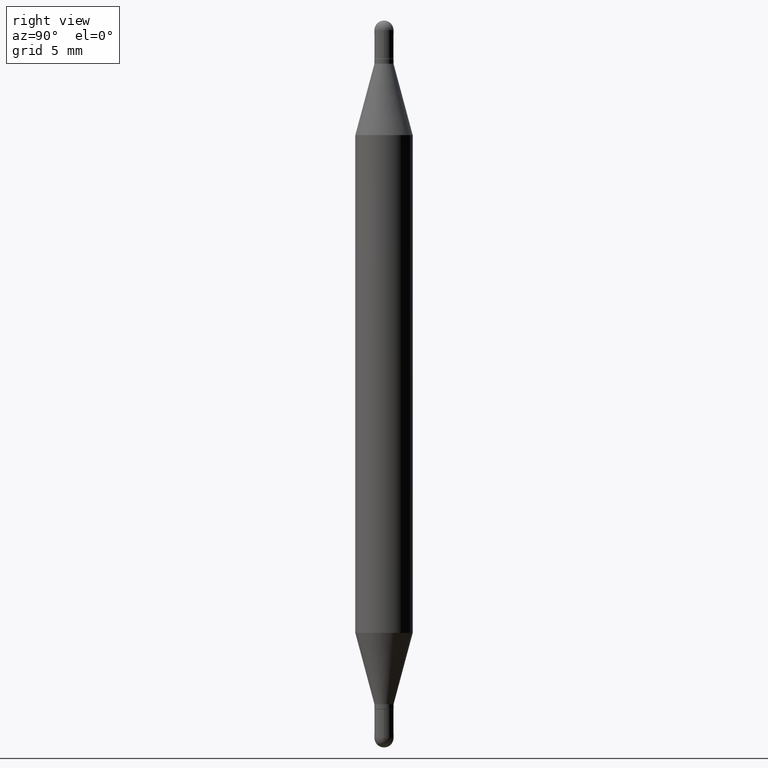
[diagram: clean part render]
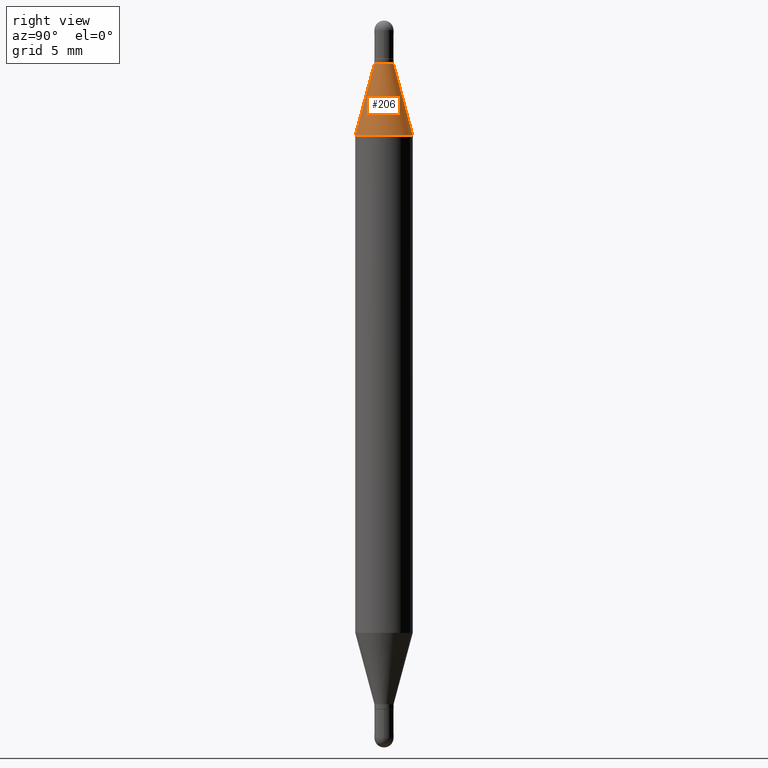
[diagram: same view with one face highlighted and labeled with its STEP entity id]
A machine part, right view. The second image highlights one B-rep face of the part: STEP entity #206.
In plain terms, the highlighted conical surface has half-angle 15 deg.
Its self-contained STEP definition (entity closure, byte-faithful):
#5 = AXIS2_PLACEMENT_3D ( 'NONE', #135, #141, #638 ) ;
#53 = FACE_OUTER_BOUND ( 'NONE', #283, .T. ) ;
#82 = VECTOR ( 'NONE', #258, 39.37007874015748143 ) ;
#89 = EDGE_CURVE ( 'NONE', #215, #265, #249, .T. ) ;
#135 = CARTESIAN_POINT ( 'NONE',  ( 3.090770025373766700E-29, -8.168445195885310899E-16, -0.2358561992778358263 ) ) ;
#141 = DIRECTION ( 'NONE',  ( 2.452517539544845457E-29, 3.489708654337919205E-15, 1.000000000000000000 ) ) ;
#186 = CARTESIAN_POINT ( 'NONE',  ( 4.051124067684398803E-16, 0.05904999999999917953, -0.2358561992778360206 ) ) ;
#204 = CARTESIAN_POINT ( 'NONE',  ( -1.375643647503831486E-16, -0.01970000000000004733, -0.08899999999999999578 ) ) ;
#206 = ADVANCED_FACE ( 'NONE', ( #53 ), #1065, .T. ) ;
#215 = VERTEX_POINT ( 'NONE', #204 ) ;
#249 = CIRCLE ( 'NONE', #330, 0.01969999999999974549 ) ;
#258 = DIRECTION ( 'NONE',  ( -1.807323732225330534E-15, -0.2588190451025250138, -0.9659258262890670910 ) ) ;
#265 = VERTEX_POINT ( 'NONE', #450 ) ;
#280 = LINE ( 'NONE', #973, #82 ) ;
#283 = EDGE_LOOP ( 'NONE', ( #565, #599, #642, #807 ) ) ;
#330 = AXIS2_PLACEMENT_3D ( 'NONE', #566, #1004, #825 ) ;
#406 = CARTESIAN_POINT ( 'NONE',  ( -4.123439461173430699E-16, -0.05905000000000081711, -0.2358561992778356042 ) ) ;
#414 = VECTOR ( 'NONE', #1111, 39.37007874015748143 ) ;
#450 = CARTESIAN_POINT ( 'NONE',  ( 1.351518105561320303E-16, 0.01969999999999944365, -0.08900000000000013456 ) ) ;
#455 = AXIS2_PLACEMENT_3D ( 'NONE', #660, #472, #822 ) ;
#472 = DIRECTION ( 'NONE',  ( -2.452517539544845457E-29, -3.489708654337919205E-15, -1.000000000000000000 ) ) ;
#484 = CIRCLE ( 'NONE', #5, 0.05905000000000000526 ) ;
#512 = EDGE_CURVE ( 'NONE', #265, #686, #763, .T. ) ;
#514 = VERTEX_POINT ( 'NONE', #406 ) ;
#565 = ORIENTED_EDGE ( 'NONE', *, *, #512, .F. ) ;
#566 = CARTESIAN_POINT ( 'NONE',  ( 3.450937429893551947E-29, -3.043591700254928596E-16, -0.08900000000000006517 ) ) ;
#599 = ORIENTED_EDGE ( 'NONE', *, *, #89, .F. ) ;
#638 = DIRECTION ( 'NONE',  ( -6.982962677686265922E-15, -1.000000000000000000, 3.469747663417777002E-15 ) ) ;
#642 = ORIENTED_EDGE ( 'NONE', *, *, #765, .T. ) ;
#660 = CARTESIAN_POINT ( 'NONE',  ( 3.450937429893551947E-29, -3.043591700254928596E-16, -0.08900000000000006517 ) ) ;
#686 = VERTEX_POINT ( 'NONE', #186 ) ;
#763 = LINE ( 'NONE', #1035, #414 ) ;
#765 = EDGE_CURVE ( 'NONE', #215, #514, #280, .T. ) ;
#807 = ORIENTED_EDGE ( 'NONE', *, *, #947, .T. ) ;
#822 = DIRECTION ( 'NONE',  ( -6.982962677686265922E-15, -1.000000000000000000, 3.466812174700886453E-15 ) ) ;
#825 = DIRECTION ( 'NONE',  ( -6.982962677686265922E-15, -1.000000000000000000, 3.466812174700886453E-15 ) ) ;
#947 = EDGE_CURVE ( 'NONE', #514, #686, #484, .T. ) ;
#973 = CARTESIAN_POINT ( 'NONE',  ( -1.375643647503831486E-16, -0.01970000000000004733, -0.08899999999999999578 ) ) ;
#1004 = DIRECTION ( 'NONE',  ( 2.452517539544845457E-29, 3.489708654337919205E-15, 1.000000000000000000 ) ) ;
#1035 = CARTESIAN_POINT ( 'NONE',  ( 1.351518105561319317E-16, 0.01969999999999944365, -0.08900000000000013456 ) ) ;
#1065 = CONICAL_SURFACE ( 'NONE', #455, 0.01969999999999974549, 0.2617993877991502960 ) ;
#1111 = DIRECTION ( 'NONE',  ( 1.775627540710965497E-15, 0.2588190451025182415, -0.9659258262890689783 ) ) ;